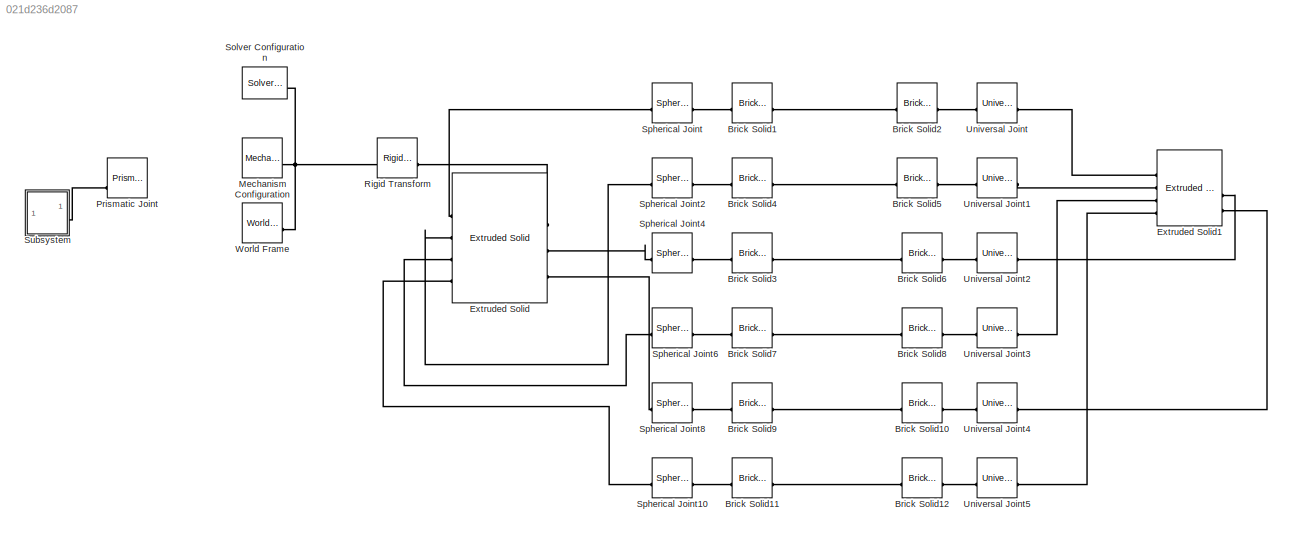
MODEL slx_021d236d2087
KIND model
CONFIG AbsTol = auto
CONFIG EnableMultiTasking = off
CONFIG FixedStep = auto
CONFIG MaxStep = auto
CONFIG MinStep = auto
CONFIG RelTol = 1e-8
CONFIG SampleTimeConstraint = Unconstrained
CONFIG SolverName = ode15s
CONFIG StartTime = 0.0
CONFIG StopTime = 15
BLOCK [Reference] Brick Solid1  REF=sm_lib/Body Elements/Brick Solid
  SourceBlock = sm_lib/Body Elements/Brick Solid
  SourceType = Brick Solid
BLOCK [Reference] Brick Solid10  REF=sm_lib/Body Elements/Brick Solid
  SourceBlock = sm_lib/Body Elements/Brick Solid
  SourceType = Brick Solid
BLOCK [Reference] Brick Solid11  REF=sm_lib/Body Elements/Brick Solid
  SourceBlock = sm_lib/Body Elements/Brick Solid
  SourceType = Brick Solid
BLOCK [Reference] Brick Solid12  REF=sm_lib/Body Elements/Brick Solid
  SourceBlock = sm_lib/Body Elements/Brick Solid
  SourceType = Brick Solid
BLOCK [Reference] Brick Solid2  REF=sm_lib/Body Elements/Brick Solid
  SourceBlock = sm_lib/Body Elements/Brick Solid
  SourceType = Brick Solid
BLOCK [Reference] Brick Solid3  REF=sm_lib/Body Elements/Brick Solid
  SourceBlock = sm_lib/Body Elements/Brick Solid
  SourceType = Brick Solid
BLOCK [Reference] Brick Solid4  REF=sm_lib/Body Elements/Brick Solid
  SourceBlock = sm_lib/Body Elements/Brick Solid
  SourceType = Brick Solid
BLOCK [Reference] Brick Solid5  REF=sm_lib/Body Elements/Brick Solid
  SourceBlock = sm_lib/Body Elements/Brick Solid
  SourceType = Brick Solid
BLOCK [Reference] Brick Solid6  REF=sm_lib/Body Elements/Brick Solid
  SourceBlock = sm_lib/Body Elements/Brick Solid
  SourceType = Brick Solid
BLOCK [Reference] Brick Solid7  REF=sm_lib/Body Elements/Brick Solid
  SourceBlock = sm_lib/Body Elements/Brick Solid
  SourceType = Brick Solid
BLOCK [Reference] Brick Solid8  REF=sm_lib/Body Elements/Brick Solid
  SourceBlock = sm_lib/Body Elements/Brick Solid
  SourceType = Brick Solid
BLOCK [Reference] Brick Solid9  REF=sm_lib/Body Elements/Brick Solid
  SourceBlock = sm_lib/Body Elements/Brick Solid
  SourceType = Brick Solid
BLOCK [Reference] Extruded Solid  REF=sm_lib/Body Elements/Extruded Solid
  SourceBlock = sm_lib/Body Elements/Extruded Solid
  SourceType = Extruded Solid
BLOCK [Reference] Extruded Solid1  REF=sm_lib/Body Elements/Extruded Solid
  SourceBlock = sm_lib/Body Elements/Extruded Solid
  SourceType = Extruded Solid
BLOCK [Reference] Mechanism Configuration  REF=sm_lib/Utilities/Mechanism
Configuration
  SourceBlock = sm_lib/Utilities/Mechanism\nConfiguration
  SourceType = Mechanism\nConfiguration
BLOCK [Reference] Prismatic Joint  REF=sm_lib/Joints/Prismatic
Joint
  Commented = on
  SourceBlock = sm_lib/Joints/Prismatic\nJoint
  SourceType = Prismatic\nJoint
BLOCK [Reference] Rigid Transform  REF=sm_lib/Frames and
Transforms/Rigid
Transform
  SourceBlock = sm_lib/Frames and\nTransforms/Rigid\nTransform
  SourceType = Rigid\nTransform
BLOCK [Reference] Solver Configuration  REF=nesl_utility/Solver
Configuration
  SourceBlock = nesl_utility/Solver\nConfiguration
  SourceType = Solver\nConfiguration
BLOCK [Reference] Spherical Joint  REF=sm_lib/Joints/Spherical
Joint
  SourceBlock = sm_lib/Joints/Spherical\nJoint
  SourceType = Spherical\nJoint
BLOCK [Reference] Spherical Joint10  REF=sm_lib/Joints/Spherical
Joint
  SourceBlock = sm_lib/Joints/Spherical\nJoint
  SourceType = Spherical\nJoint
BLOCK [Reference] Spherical Joint2  REF=sm_lib/Joints/Spherical
Joint
  SourceBlock = sm_lib/Joints/Spherical\nJoint
  SourceType = Spherical\nJoint
BLOCK [Reference] Spherical Joint4  REF=sm_lib/Joints/Spherical
Joint
  SourceBlock = sm_lib/Joints/Spherical\nJoint
  SourceType = Spherical\nJoint
BLOCK [Reference] Spherical Joint6  REF=sm_lib/Joints/Spherical
Joint
  SourceBlock = sm_lib/Joints/Spherical\nJoint
  SourceType = Spherical\nJoint
BLOCK [Reference] Spherical Joint8  REF=sm_lib/Joints/Spherical
Joint
  SourceBlock = sm_lib/Joints/Spherical\nJoint
  SourceType = Spherical\nJoint
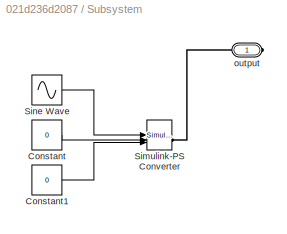
BLOCK [SubSystem] Subsystem
  Commented = on
BLOCK [Constant] Subsystem/Constant
  Value = 0
BLOCK [Constant] Subsystem/Constant1
  Value = 0
BLOCK [Reference] Subsystem/Simulink-PS Converter  REF=nesl_utility/Simulink-PS
Converter
  SourceBlock = nesl_utility/Simulink-PS\nConverter
  SourceType = Simulink-PS\nConverter
BLOCK [Sin] Subsystem/Sine Wave
  Amplitude = 0.5
  SampleTime = 0
BLOCK [PMIOPort] Subsystem/output
  Side = Right
BLOCK [Reference] Universal Joint  REF=sm_lib/Joints/Universal
Joint
  SourceBlock = sm_lib/Joints/Universal\nJoint
  SourceType = Universal\nJoint
BLOCK [Reference] Universal Joint1  REF=sm_lib/Joints/Universal
Joint
  SourceBlock = sm_lib/Joints/Universal\nJoint
  SourceType = Universal\nJoint
BLOCK [Reference] Universal Joint2  REF=sm_lib/Joints/Universal
Joint
  SourceBlock = sm_lib/Joints/Universal\nJoint
  SourceType = Universal\nJoint
BLOCK [Reference] Universal Joint3  REF=sm_lib/Joints/Universal
Joint
  SourceBlock = sm_lib/Joints/Universal\nJoint
  SourceType = Universal\nJoint
BLOCK [Reference] Universal Joint4  REF=sm_lib/Joints/Universal
Joint
  SourceBlock = sm_lib/Joints/Universal\nJoint
  SourceType = Universal\nJoint
BLOCK [Reference] Universal Joint5  REF=sm_lib/Joints/Universal
Joint
  SourceBlock = sm_lib/Joints/Universal\nJoint
  SourceType = Universal\nJoint
BLOCK [Reference] World Frame  REF=sm_lib/Frames and
Transforms/World Frame
  SourceBlock = sm_lib/Frames and\nTransforms/World Frame
  SourceType = World Frame
LINE Subsystem/Constant1:1 -> Subsystem/Simulink-PS Converter:3
LINE Subsystem/Constant:1 -> Subsystem/Simulink-PS Converter:2
LINE Subsystem/Sine Wave:1 -> Subsystem/Simulink-PS Converter:1
PLINE Brick Solid10:LConn1 -- Brick Solid9:RConn1
PLINE Brick Solid10:RConn1 -- Universal Joint4:LConn1
PLINE Brick Solid11:LConn1 -- Spherical Joint10:RConn1
PLINE Brick Solid11:RConn1 -- Brick Solid12:LConn1
PLINE Brick Solid12:RConn1 -- Universal Joint5:LConn1
PLINE Brick Solid1:LConn1 -- Spherical Joint:RConn1
PLINE Brick Solid1:RConn1 -- Brick Solid2:LConn1
PLINE Brick Solid2:RConn1 -- Universal Joint:LConn1
PLINE Brick Solid3:LConn1 -- Spherical Joint4:RConn1
PLINE Brick Solid3:RConn1 -- Brick Solid6:LConn1
PLINE Brick Solid4:LConn1 -- Spherical Joint2:RConn1
PLINE Brick Solid4:RConn1 -- Brick Solid5:LConn1
PLINE Brick Solid5:RConn1 -- Universal Joint1:LConn1
PLINE Brick Solid6:RConn1 -- Universal Joint2:LConn1
PLINE Brick Solid7:LConn1 -- Spherical Joint6:RConn1
PLINE Brick Solid7:RConn1 -- Brick Solid8:LConn1
PLINE Brick Solid8:RConn1 -- Universal Joint3:LConn1
PLINE Brick Solid9:LConn1 -- Spherical Joint8:RConn1
PLINE Extruded Solid1:LConn1 -- Universal Joint:RConn1
PLINE Extruded Solid1:LConn2 -- Universal Joint1:RConn1
PLINE Extruded Solid1:LConn3 -- Universal Joint3:RConn1
PLINE Extruded Solid1:LConn4 -- Universal Joint5:RConn1
PLINE Extruded Solid1:RConn2 -- Universal Joint2:RConn1
PLINE Extruded Solid1:RConn3 -- Universal Joint4:RConn1
PLINE Extruded Solid:LConn1 -- Spherical Joint:LConn1
PLINE Extruded Solid:LConn2 -- Spherical Joint2:LConn1
PLINE Extruded Solid:LConn3 -- Spherical Joint6:LConn1
PLINE Extruded Solid:LConn4 -- Spherical Joint10:LConn1
PLINE Extruded Solid:RConn1 -- Rigid Transform:RConn1
PLINE Extruded Solid:RConn2 -- Spherical Joint4:LConn1
PLINE Extruded Solid:RConn3 -- Spherical Joint8:LConn1
PNET net1: Mechanism Configuration:RConn1 -- Rigid Transform:LConn1 -- Solver Configuration:RConn1 -- World Frame:RConn1
PLINE Prismatic Joint:LConn2 -- Subsystem:RConn1
PLINE Subsystem/Simulink-PS Converter:RConn1 -- Subsystem/output:RConn1
note: PNET lines group multi-terminal physical nets as a canonical sorted terminal list (undirected conserving connections); 2-terminal nets keep the pairwise PLINE form
